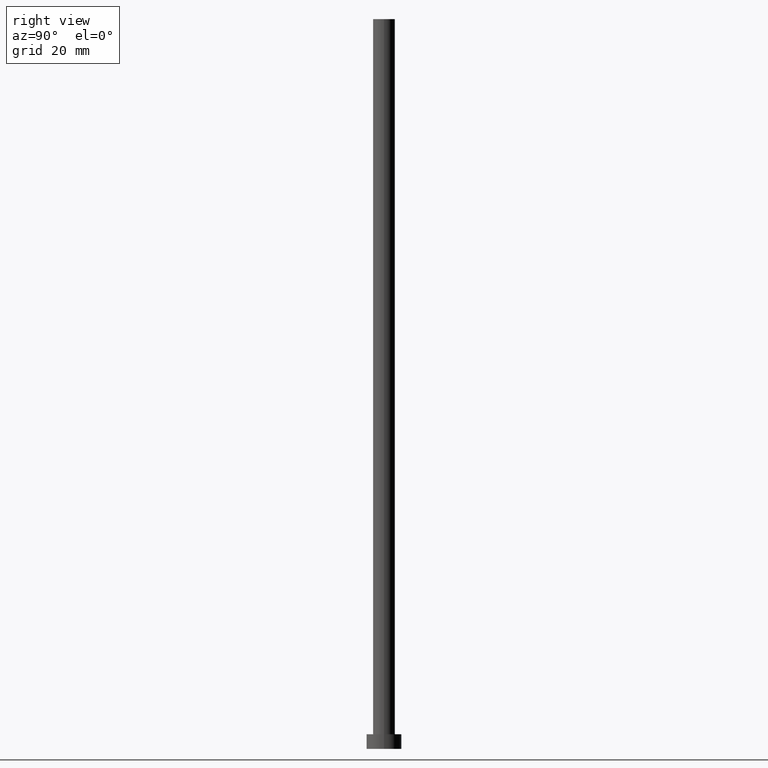
[diagram: clean part render]
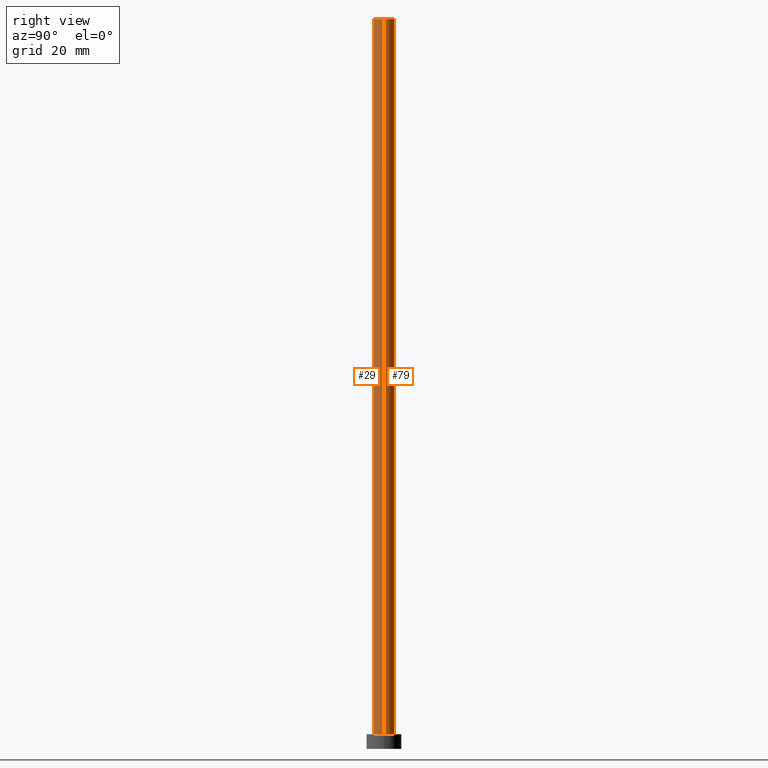
[diagram: same view with one multi-face feature highlighted, each face labeled with its STEP entity id]
A machine part, right view. The highlighted faces form ONE feature: a constant-radius fillet chain: 2 tangent blend faces with common blend radius 3.75 mm. The faces share edges in the B-rep.
Their STEP definitions:
[1] entity #79 (Cylinder):
#6 = AXIS2_PLACEMENT_3D ( 'NONE', #175, #195, #32 ) ;
#9 = LINE ( 'NONE', #244, #126 ) ;
#15 = CYLINDRICAL_SURFACE ( 'NONE', #184, 3.750000000000000000 ) ;
#24 = EDGE_LOOP ( 'NONE', ( #241, #185, #48, #88 ) ) ;
#32 = DIRECTION ( 'NONE',  ( 1.000000000000000000, 0.000000000000000000, 0.000000000000000000 ) ) ;
#33 = CARTESIAN_POINT ( 'NONE',  ( -3.750000000000000000, 0.000000000000000000, 5.000000000000000000 ) ) ;
#44 = EDGE_CURVE ( 'NONE', #187, #110, #9, .T. ) ;
#47 = VERTEX_POINT ( 'NONE', #93 ) ;
#48 = ORIENTED_EDGE ( 'NONE', *, *, #183, .T. ) ;
#72 = DIRECTION ( 'NONE',  ( -0.000000000000000000, -0.000000000000000000, -1.000000000000000000 ) ) ;
#74 = CARTESIAN_POINT ( 'NONE',  ( 3.750000000000000000, 4.592425496802573972E-16, 5.000000000000000000 ) ) ;
#75 = EDGE_CURVE ( 'NONE', #47, #187, #97, .T. ) ;
#77 = DIRECTION ( 'NONE',  ( -0.000000000000000000, -0.000000000000000000, -1.000000000000000000 ) ) ;
#79 = ADVANCED_FACE ( 'NONE', ( #174 ), #15, .T. ) ;
#80 = CARTESIAN_POINT ( 'NONE',  ( -3.750000000000000000, 0.000000000000000000, 250.0000000000000000 ) ) ;
#88 = ORIENTED_EDGE ( 'NONE', *, *, #44, .F. ) ;
#93 = CARTESIAN_POINT ( 'NONE',  ( 3.750000000000000000, 4.592425496802573972E-16, 250.0000000000000000 ) ) ;
#97 = CIRCLE ( 'NONE', #6, 3.750000000000000000 ) ;
#101 = LINE ( 'NONE', #211, #208 ) ;
#104 = AXIS2_PLACEMENT_3D ( 'NONE', #250, #246, #136 ) ;
#110 = VERTEX_POINT ( 'NONE', #33 ) ;
#126 = VECTOR ( 'NONE', #72, 1000.000000000000000 ) ;
#136 = DIRECTION ( 'NONE',  ( 1.000000000000000000, 0.000000000000000000, 0.000000000000000000 ) ) ;
#151 = EDGE_CURVE ( 'NONE', #47, #239, #101, .T. ) ;
#154 = CARTESIAN_POINT ( 'NONE',  ( 0.000000000000000000, 0.000000000000000000, 250.0000000000000000 ) ) ;
#155 = DIRECTION ( 'NONE',  ( -0.000000000000000000, -0.000000000000000000, -1.000000000000000000 ) ) ;
#174 = FACE_OUTER_BOUND ( 'NONE', #24, .T. ) ;
#175 = CARTESIAN_POINT ( 'NONE',  ( 0.000000000000000000, 0.000000000000000000, 250.0000000000000000 ) ) ;
#183 = EDGE_CURVE ( 'NONE', #239, #110, #213, .T. ) ;
#184 = AXIS2_PLACEMENT_3D ( 'NONE', #154, #155, #245 ) ;
#185 = ORIENTED_EDGE ( 'NONE', *, *, #151, .T. ) ;
#187 = VERTEX_POINT ( 'NONE', #80 ) ;
#195 = DIRECTION ( 'NONE',  ( 0.000000000000000000, 0.000000000000000000, 1.000000000000000000 ) ) ;
#208 = VECTOR ( 'NONE', #77, 1000.000000000000000 ) ;
#211 = CARTESIAN_POINT ( 'NONE',  ( 3.750000000000000000, 4.592425496802573972E-16, 250.0000000000000000 ) ) ;
#213 = CIRCLE ( 'NONE', #104, 3.750000000000000000 ) ;
#239 = VERTEX_POINT ( 'NONE', #74 ) ;
#241 = ORIENTED_EDGE ( 'NONE', *, *, #75, .F. ) ;
#244 = CARTESIAN_POINT ( 'NONE',  ( -3.750000000000000000, 0.000000000000000000, 250.0000000000000000 ) ) ;
#245 = DIRECTION ( 'NONE',  ( -1.000000000000000000, 0.000000000000000000, 0.000000000000000000 ) ) ;
#246 = DIRECTION ( 'NONE',  ( 0.000000000000000000, 0.000000000000000000, 1.000000000000000000 ) ) ;
#250 = CARTESIAN_POINT ( 'NONE',  ( 0.000000000000000000, 0.000000000000000000, 5.000000000000000000 ) ) ;
[2] entity #29 (Cylinder):
#5 = ORIENTED_EDGE ( 'NONE', *, *, #44, .T. ) ;
#8 = CYLINDRICAL_SURFACE ( 'NONE', #146, 3.750000000000000000 ) ;
#9 = LINE ( 'NONE', #244, #126 ) ;
#20 = EDGE_CURVE ( 'NONE', #110, #239, #230, .T. ) ;
#29 = ADVANCED_FACE ( 'NONE', ( #91 ), #8, .T. ) ;
#33 = CARTESIAN_POINT ( 'NONE',  ( -3.750000000000000000, 0.000000000000000000, 5.000000000000000000 ) ) ;
#41 = CARTESIAN_POINT ( 'NONE',  ( 0.000000000000000000, 0.000000000000000000, 250.0000000000000000 ) ) ;
#44 = EDGE_CURVE ( 'NONE', #187, #110, #9, .T. ) ;
#47 = VERTEX_POINT ( 'NONE', #93 ) ;
#50 = DIRECTION ( 'NONE',  ( -0.000000000000000000, -0.000000000000000000, -1.000000000000000000 ) ) ;
#67 = CARTESIAN_POINT ( 'NONE',  ( 0.000000000000000000, 0.000000000000000000, 5.000000000000000000 ) ) ;
#72 = DIRECTION ( 'NONE',  ( -0.000000000000000000, -0.000000000000000000, -1.000000000000000000 ) ) ;
#73 = CIRCLE ( 'NONE', #234, 3.750000000000000000 ) ;
#74 = CARTESIAN_POINT ( 'NONE',  ( 3.750000000000000000, 4.592425496802573972E-16, 5.000000000000000000 ) ) ;
#77 = DIRECTION ( 'NONE',  ( -0.000000000000000000, -0.000000000000000000, -1.000000000000000000 ) ) ;
#80 = CARTESIAN_POINT ( 'NONE',  ( -3.750000000000000000, 0.000000000000000000, 250.0000000000000000 ) ) ;
#91 = FACE_OUTER_BOUND ( 'NONE', #108, .T. ) ;
#92 = CARTESIAN_POINT ( 'NONE',  ( 0.000000000000000000, 0.000000000000000000, 250.0000000000000000 ) ) ;
#93 = CARTESIAN_POINT ( 'NONE',  ( 3.750000000000000000, 4.592425496802573972E-16, 250.0000000000000000 ) ) ;
#101 = LINE ( 'NONE', #211, #208 ) ;
#108 = EDGE_LOOP ( 'NONE', ( #202, #170, #5, #207 ) ) ;
#110 = VERTEX_POINT ( 'NONE', #33 ) ;
#111 = DIRECTION ( 'NONE',  ( 0.000000000000000000, 0.000000000000000000, 1.000000000000000000 ) ) ;
#126 = VECTOR ( 'NONE', #72, 1000.000000000000000 ) ;
#146 = AXIS2_PLACEMENT_3D ( 'NONE', #92, #50, #189 ) ;
#151 = EDGE_CURVE ( 'NONE', #47, #239, #101, .T. ) ;
#167 = AXIS2_PLACEMENT_3D ( 'NONE', #67, #111, #226 ) ;
#170 = ORIENTED_EDGE ( 'NONE', *, *, #252, .F. ) ;
#187 = VERTEX_POINT ( 'NONE', #80 ) ;
#189 = DIRECTION ( 'NONE',  ( -1.000000000000000000, 0.000000000000000000, 0.000000000000000000 ) ) ;
#200 = DIRECTION ( 'NONE',  ( 1.000000000000000000, 0.000000000000000000, 0.000000000000000000 ) ) ;
#202 = ORIENTED_EDGE ( 'NONE', *, *, #151, .F. ) ;
#207 = ORIENTED_EDGE ( 'NONE', *, *, #20, .T. ) ;
#208 = VECTOR ( 'NONE', #77, 1000.000000000000000 ) ;
#211 = CARTESIAN_POINT ( 'NONE',  ( 3.750000000000000000, 4.592425496802573972E-16, 250.0000000000000000 ) ) ;
#226 = DIRECTION ( 'NONE',  ( 1.000000000000000000, 0.000000000000000000, 0.000000000000000000 ) ) ;
#230 = CIRCLE ( 'NONE', #167, 3.750000000000000000 ) ;
#234 = AXIS2_PLACEMENT_3D ( 'NONE', #41, #251, #200 ) ;
#239 = VERTEX_POINT ( 'NONE', #74 ) ;
#244 = CARTESIAN_POINT ( 'NONE',  ( -3.750000000000000000, 0.000000000000000000, 250.0000000000000000 ) ) ;
#251 = DIRECTION ( 'NONE',  ( 0.000000000000000000, 0.000000000000000000, 1.000000000000000000 ) ) ;
#252 = EDGE_CURVE ( 'NONE', #187, #47, #73, .T. ) ;